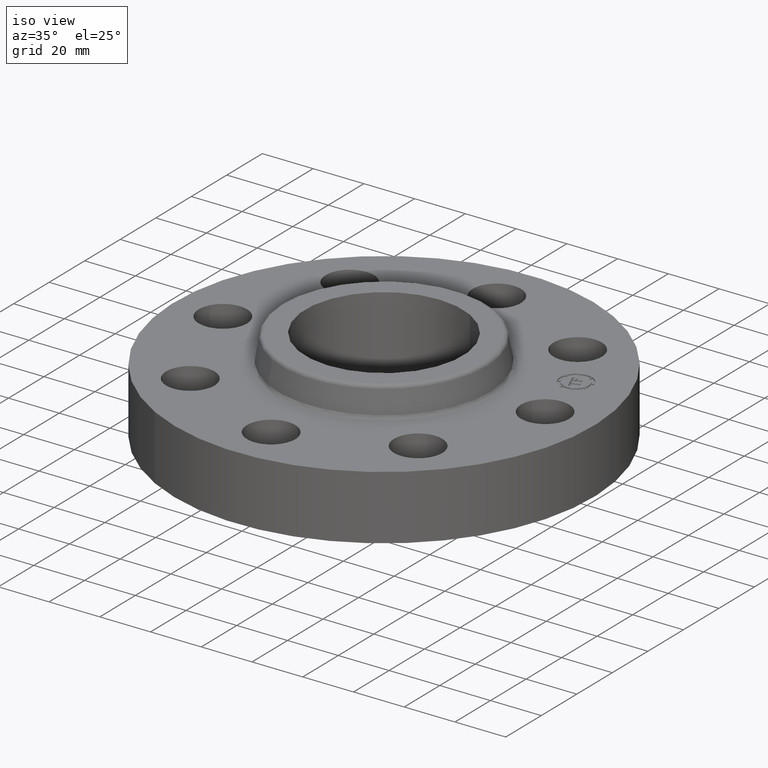
[diagram: clean part render]
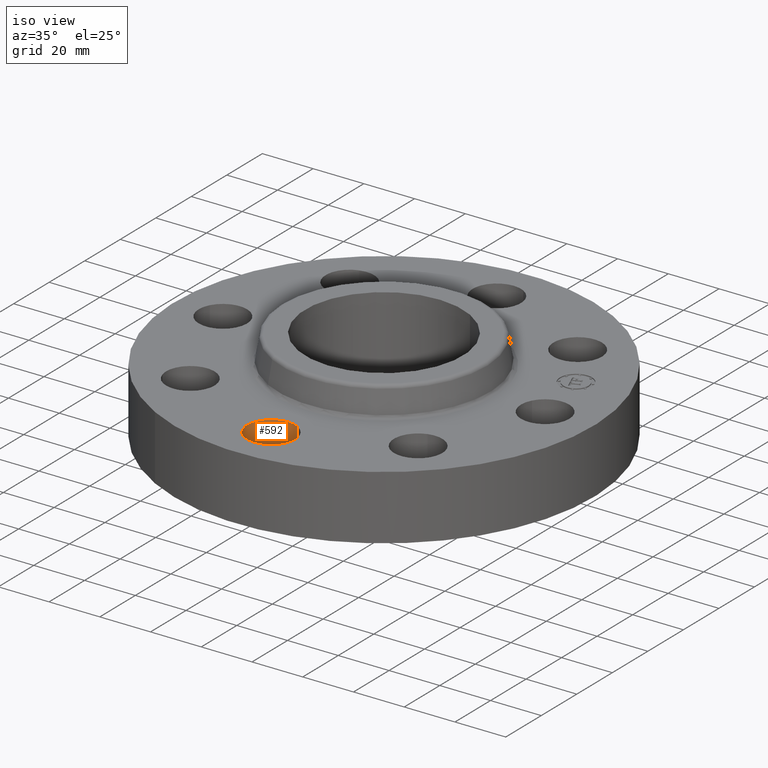
[diagram: same view with one face highlighted and labeled with its STEP entity id]
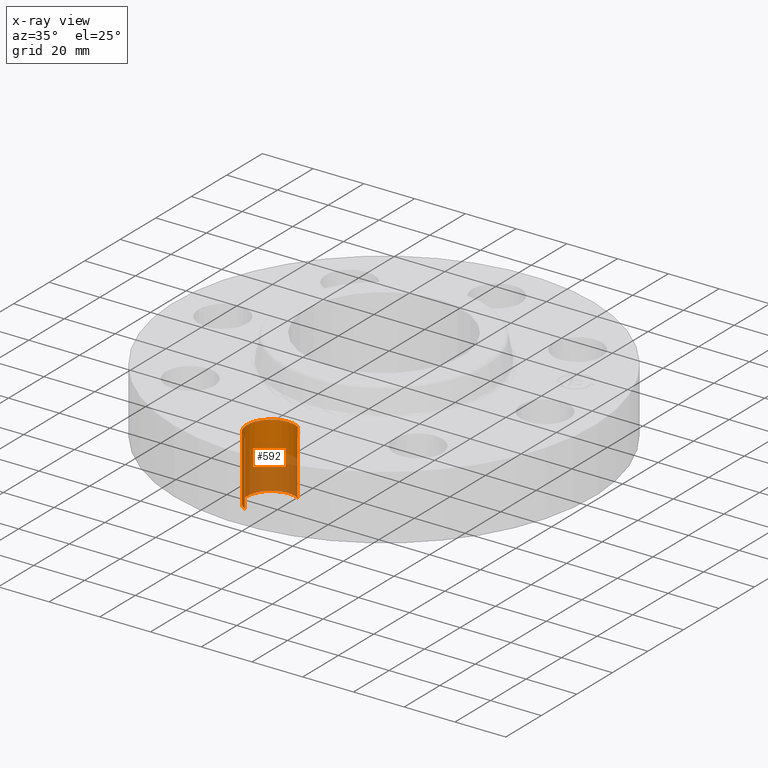
[diagram: x-ray of the same camera — body ghosted, the highlighted face saturated]
A machine part, iso view. The second image highlights one B-rep face of the part: STEP entity #592.
The next image is the same camera in x-ray: the body ghosted, the highlighted face saturated — about 47% of this face is hidden behind the body in this view.
In plain terms, the highlighted cylindrical surface (edge-blend (fillet) strip) has radius 9.525 mm, axis along (0, -0, -1).
Its self-contained STEP definition (entity closure, byte-faithful):
#409=AXIS2_PLACEMENT_3D('Circle Axis2P3D',#407,#408,$) ;
#553=AXIS2_PLACEMENT_3D('Cylinder Axis2P3D',#550,#551,#552) ;
#583=AXIS2_PLACEMENT_3D('Circle Axis2P3D',#581,#582,$) ;
#402=CARTESIAN_POINT('Vertex',(0.179784576977,-2.1709065393,0.)) ;
#404=CARTESIAN_POINT('Vertex',(-0.179784576977,-2.82909346072,0.)) ;
#407=CARTESIAN_POINT('Axis2P3D Location',(1.39870617276E-016,-2.50000000001,0.)) ;
#550=CARTESIAN_POINT('Axis2P3D Location',(1.53080849894E-016,-2.50000000001,0.99606299213)) ;
#555=CARTESIAN_POINT('Line Origine',(0.179784576977,-2.1709065393,0.500000000002)) ;
#559=CARTESIAN_POINT('Vertex',(0.179784576977,-2.1709065393,1.)) ;
#562=CARTESIAN_POINT('Line Origine',(-0.179784576977,-2.82909346072,0.500000000002)) ;
#566=CARTESIAN_POINT('Vertex',(-0.179784576977,-2.82909346072,1.)) ;
#581=CARTESIAN_POINT('Axis2P3D Location',(1.53080849894E-016,-2.50000000001,1.)) ;
#408=DIRECTION('Axis2P3D Direction',(0.,0.,-0.0393700787402)) ;
#551=DIRECTION('Axis2P3D Direction',(0.,-0.,-0.0393700787402)) ;
#552=DIRECTION('Axis2P3D XDirection',(-0.0188750212049,-0.0345504945626,0.)) ;
#556=DIRECTION('Vector Direction',(0.,0.,-0.0393700787402)) ;
#563=DIRECTION('Vector Direction',(0.,0.,-0.0393700787402)) ;
#582=DIRECTION('Axis2P3D Direction',(0.,-0.,-0.0393700787402)) ;
#557=VECTOR('Line Direction',#556,0.0393700787402) ;
#564=VECTOR('Line Direction',#563,0.0393700787402) ;
#587=ORIENTED_EDGE('',*,*,#568,.F.) ;
#588=ORIENTED_EDGE('',*,*,#411,.T.) ;
#589=ORIENTED_EDGE('',*,*,#561,.T.) ;
#590=ORIENTED_EDGE('',*,*,#585,.F.) ;
#592=ADVANCED_FACE('PartBody',(#591),#554,.F.) ;
#410=CIRCLE('generated circle',#409,0.375000000002) ;
#584=CIRCLE('generated circle',#583,0.375000000002) ;
#554=CYLINDRICAL_SURFACE('generated cylinder',#553,0.375000000002) ;
#411=EDGE_CURVE('',#405,#403,#410,.T.) ;
#561=EDGE_CURVE('',#403,#560,#558,.F.) ;
#568=EDGE_CURVE('',#405,#567,#565,.F.) ;
#585=EDGE_CURVE('',#567,#560,#584,.T.) ;
#586=EDGE_LOOP('',(#587,#588,#589,#590)) ;
#591=FACE_OUTER_BOUND('',#586,.T.) ;
#558=LINE('Line',#555,#557) ;
#565=LINE('Line',#562,#564) ;
#403=VERTEX_POINT('',#402) ;
#405=VERTEX_POINT('',#404) ;
#560=VERTEX_POINT('',#559) ;
#567=VERTEX_POINT('',#566) ;